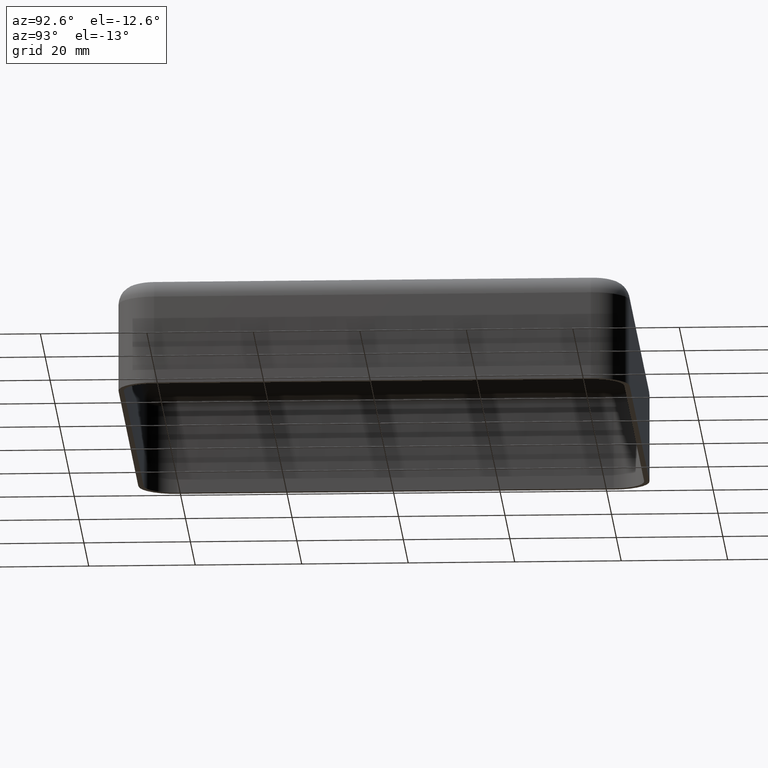
[diagram: clean part render]
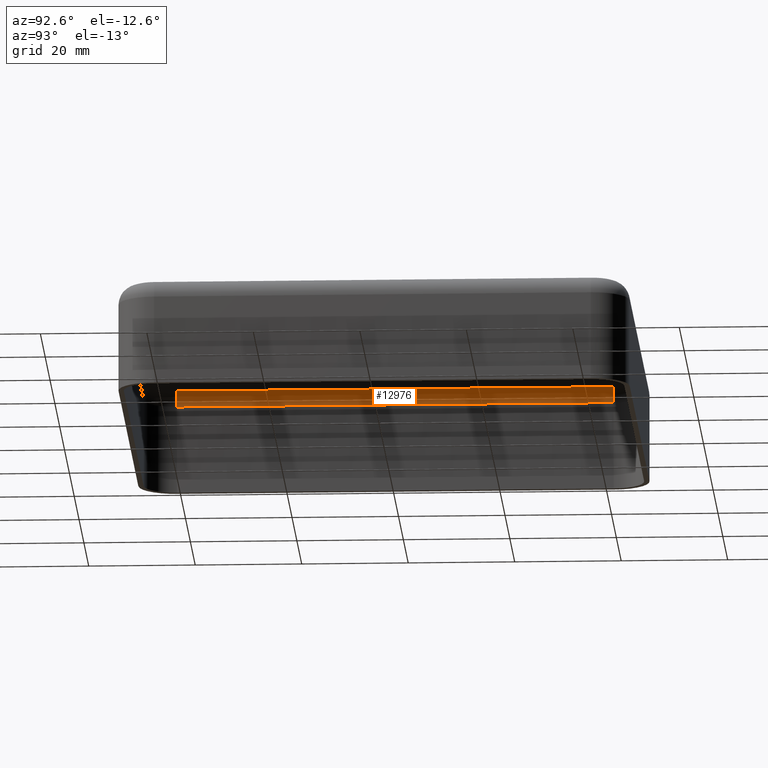
[diagram: same view with one face highlighted and labeled with its STEP entity id]
A machine part, auxiliary view. The second image highlights one B-rep face of the part: STEP entity #12976.
In plain terms, the highlighted cylindrical surface (edge-blend (fillet) strip) has radius 2.5 mm, axis along (-0, 1, 0).
Its self-contained STEP definition (entity closure, byte-faithful):
#148 = CARTESIAN_POINT ( 'NONE',  ( -47.00000000000000000, -41.00000000000000000, 16.50000000000000000 ) ) ;
#744 = DIRECTION ( 'NONE',  ( -1.445602896647339163E-16, 1.000000000000000000, 0.000000000000000000 ) ) ;
#1073 = CARTESIAN_POINT ( 'NONE',  ( -44.50000000000001421, 0.000000000000000000, 19.00000000000000000 ) ) ;
#1244 = CARTESIAN_POINT ( 'NONE',  ( -47.00000000000001421, 40.99999999999999289, 16.50000000000000000 ) ) ;
#1288 = CARTESIAN_POINT ( 'NONE',  ( -44.50000000000000000, -41.00000000000000711, 19.00000000000000000 ) ) ;
#1794 = DIRECTION ( 'NONE',  ( -1.000000000000000000, 0.000000000000000000, 0.000000000000000000 ) ) ;
#1898 = CARTESIAN_POINT ( 'NONE',  ( -44.50000000000001421, 40.99999999999998579, 19.00000000000000000 ) ) ;
#1989 = VECTOR ( 'NONE', #10301, 1000.000000000000000 ) ;
#2336 = EDGE_LOOP ( 'NONE', ( #9201, #7930, #8647, #10992 ) ) ;
#2405 = LINE ( 'NONE', #1073, #10493 ) ;
#2683 = EDGE_CURVE ( 'NONE', #13982, #6871, #8515, .T. ) ;
#2702 = EDGE_CURVE ( 'NONE', #7060, #6871, #2405, .T. ) ;
#3060 = CIRCLE ( 'NONE', #6090, 2.500000000000002220 ) ;
#4106 = CARTESIAN_POINT ( 'NONE',  ( -44.50000000000000000, -41.00000000000000000, 16.50000000000000000 ) ) ;
#4207 = DIRECTION ( 'NONE',  ( -1.445602896647339163E-16, 1.000000000000000000, 0.000000000000000000 ) ) ;
#4330 = DIRECTION ( 'NONE',  ( -1.000000000000000000, -1.445602896647338917E-16, 0.000000000000000000 ) ) ;
#5349 = CARTESIAN_POINT ( 'NONE',  ( -47.00000000000001421, 47.99999999999999289, 16.50000000000000000 ) ) ;
#5746 = VERTEX_POINT ( 'NONE', #1244 ) ;
#5975 = EDGE_CURVE ( 'NONE', #7060, #5746, #3060, .T. ) ;
#6090 = AXIS2_PLACEMENT_3D ( 'NONE', #8664, #12125, #1794 ) ;
#6871 = VERTEX_POINT ( 'NONE', #1288 ) ;
#6960 = FACE_OUTER_BOUND ( 'NONE', #2336, .T. ) ;
#7001 = LINE ( 'NONE', #5349, #1989 ) ;
#7060 = VERTEX_POINT ( 'NONE', #1898 ) ;
#7323 = CYLINDRICAL_SURFACE ( 'NONE', #8351, 2.500000000000002220 ) ;
#7593 = DIRECTION ( 'NONE',  ( -1.000000000000000000, 0.000000000000000000, 0.000000000000000000 ) ) ;
#7930 = ORIENTED_EDGE ( 'NONE', *, *, #5975, .F. ) ;
#8351 = AXIS2_PLACEMENT_3D ( 'NONE', #14755, #744, #4330 ) ;
#8515 = CIRCLE ( 'NONE', #10164, 2.500000000000002220 ) ;
#8647 = ORIENTED_EDGE ( 'NONE', *, *, #2702, .T. ) ;
#8664 = CARTESIAN_POINT ( 'NONE',  ( -44.50000000000001421, 40.99999999999998579, 16.50000000000000000 ) ) ;
#9201 = ORIENTED_EDGE ( 'NONE', *, *, #9829, .T. ) ;
#9829 = EDGE_CURVE ( 'NONE', #13982, #5746, #7001, .T. ) ;
#10164 = AXIS2_PLACEMENT_3D ( 'NONE', #4106, #4207, #7593 ) ;
#10301 = DIRECTION ( 'NONE',  ( -1.445602896647339163E-16, 1.000000000000000000, 0.000000000000000000 ) ) ;
#10493 = VECTOR ( 'NONE', #13622, 1000.000000000000000 ) ;
#10992 = ORIENTED_EDGE ( 'NONE', *, *, #2683, .F. ) ;
#12125 = DIRECTION ( 'NONE',  ( 1.445602896647339163E-16, -1.000000000000000000, -0.000000000000000000 ) ) ;
#12976 = ADVANCED_FACE ( 'NONE', ( #6960 ), #7323, .F. ) ;
#13622 = DIRECTION ( 'NONE',  ( -0.000000000000000000, -1.000000000000000000, 0.000000000000000000 ) ) ;
#13982 = VERTEX_POINT ( 'NONE', #148 ) ;
#14755 = CARTESIAN_POINT ( 'NONE',  ( -44.50000000000000711, -6.432932890080659905E-15, 16.50000000000000000 ) ) ;